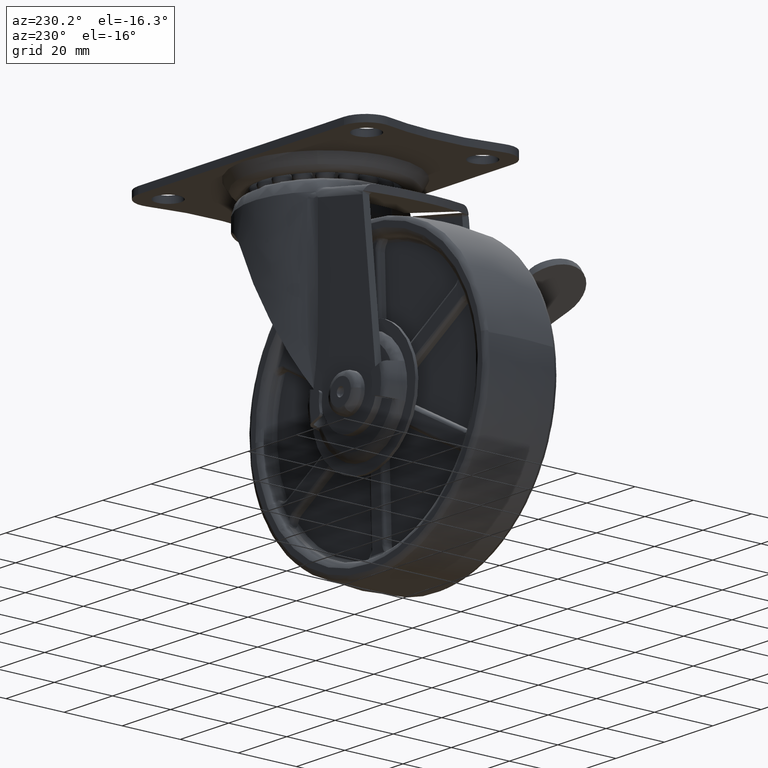
[diagram: clean part render]
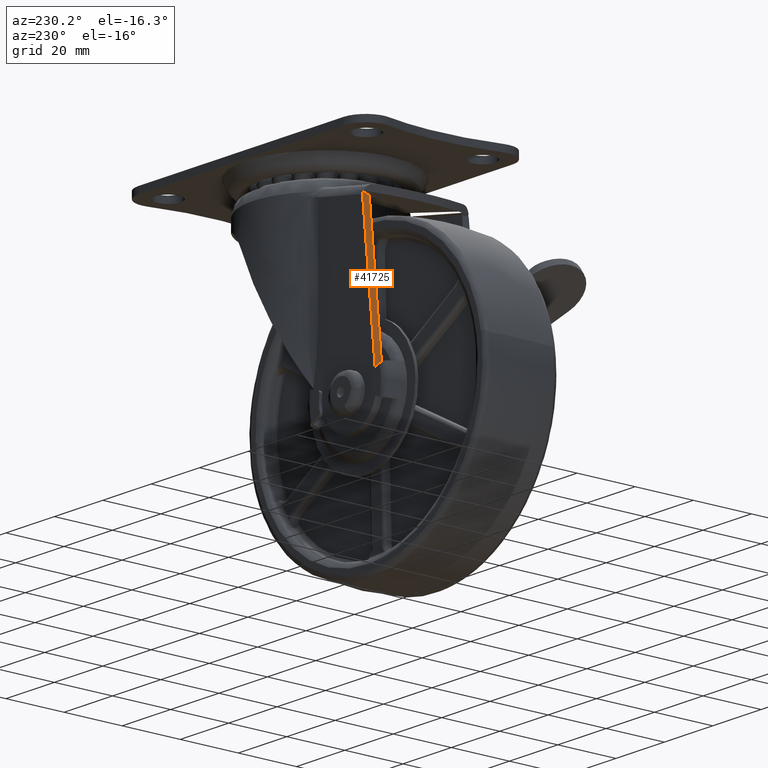
[diagram: same view with one face highlighted and labeled with its STEP entity id]
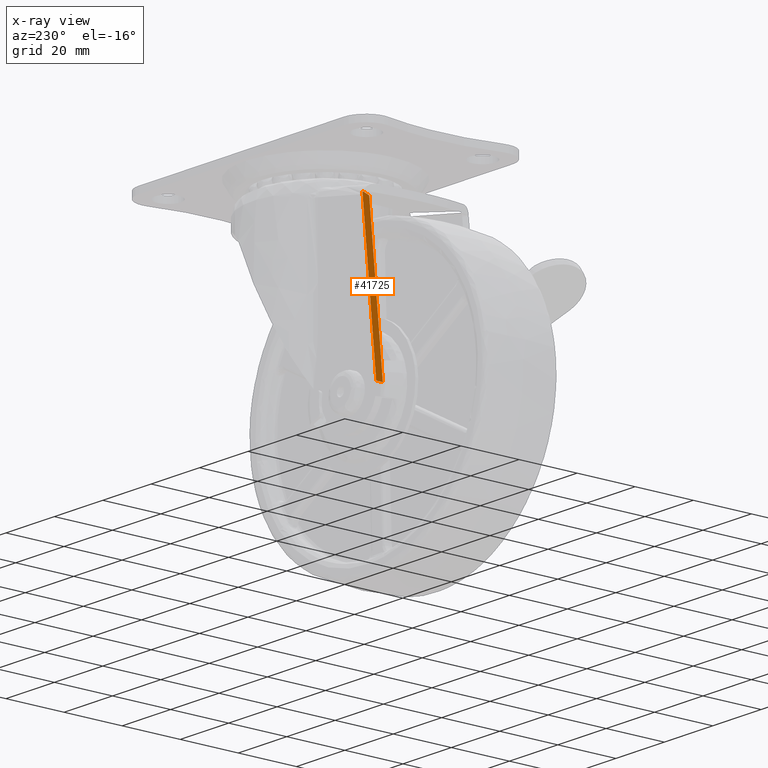
[diagram: x-ray of the same camera — body ghosted, the highlighted face saturated]
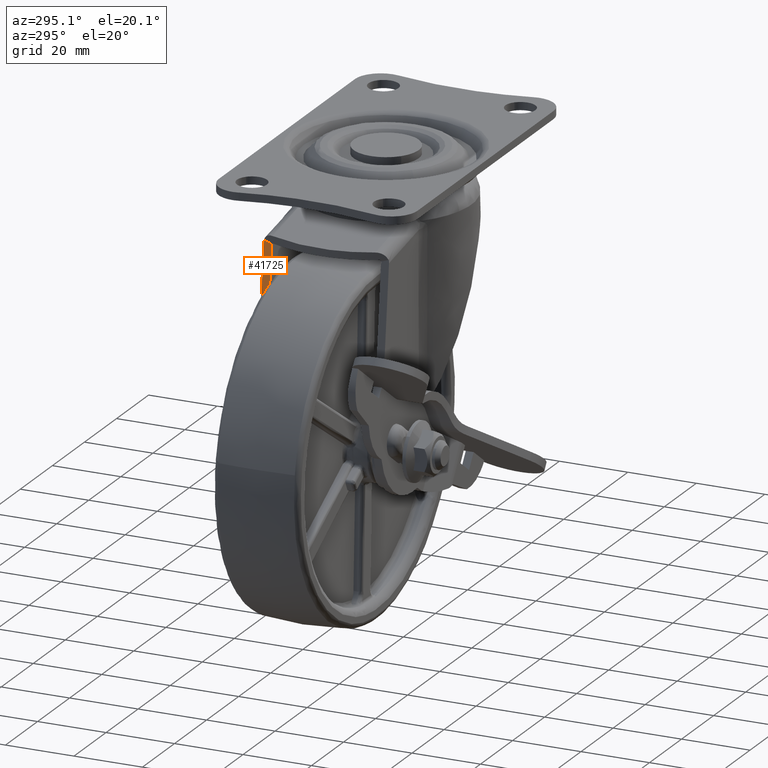
[diagram: same view with one face highlighted and labeled with its STEP entity id]
A machine part, auxiliary view. The second image highlights one B-rep face of the part: STEP entity #41725.
The next image is the same camera in x-ray: the body ghosted, the highlighted face saturated — about 0% of this face is hidden behind the body in this view.
A second angle (auxiliary view) of the same face is appended — the face is thin or edge-on in the first view.
In plain terms, the highlighted face is a freeform B-spline surface patch.
Its self-contained STEP definition (entity closure, byte-faithful):
#39468=CARTESIAN_POINT('',(-5.223535336880790,18.182616130073249,54.751618823891803));
#39469=VERTEX_POINT('',#39468);
#39480=CARTESIAN_POINT('',(-5.267100143460831,17.089585904325631,54.343105379554409));
#39481=VERTEX_POINT('',#39480);
#39482=CARTESIAN_POINT('',(-5.267100143460831,17.089585904325631,54.343105379554409));
#39483=CARTESIAN_POINT('',(-5.223535336880790,18.182616130073249,54.751618823891803));
#39484=QUASI_UNIFORM_CURVE('',1,(#39482,#39483),.UNSPECIFIED.,.F.,.U.);
#39485=EDGE_CURVE('',#39481,#39469,#39484,.T.);
#39487=CARTESIAN_POINT('',(-5.310664950040851,15.996555678578099,53.934591935217099));
#39488=VERTEX_POINT('',#39487);
#39489=CARTESIAN_POINT('',(-5.310664950040851,15.996555678578099,53.934591935217099));
#39490=CARTESIAN_POINT('',(-5.267100143460831,17.089585904325631,54.343105379554409));
#39491=QUASI_UNIFORM_CURVE('',1,(#39489,#39490),.UNSPECIFIED.,.F.,.U.);
#39492=EDGE_CURVE('',#39488,#39481,#39491,.T.);
#40776=CARTESIAN_POINT('',(-5.319803650310760,15.999990000000000,53.848897031070798));
#40777=VERTEX_POINT('',#40776);
#40790=CARTESIAN_POINT('',(-5.319803650310760,15.999990000000000,53.848897031070798));
#40791=CARTESIAN_POINT('',(-5.310664950040851,15.996555678578099,53.934591935217099));
#40792=QUASI_UNIFORM_CURVE('',1,(#40790,#40791),.UNSPECIFIED.,.F.,.U.);
#40793=EDGE_CURVE('',#40777,#39488,#40792,.T.);
#40891=CARTESIAN_POINT('',(-5.319803650310750,18.299990000000001,53.848897031070912));
#40892=VERTEX_POINT('',#40891);
#40898=CARTESIAN_POINT('',(-5.223535336880790,18.182616130073249,54.751618823891803));
#40899=CARTESIAN_POINT('',(-5.254912616556883,18.260532280401030,54.457389568658591));
#40900=CARTESIAN_POINT('',(-5.287357653259307,18.300054081114141,54.153147802529851));
#40901=CARTESIAN_POINT('',(-5.319803650310750,18.299990000000001,53.848897031070912));
#40902=B_SPLINE_CURVE_WITH_KNOTS('',3,(#40898,#40899,#40900,#40901),.UNSPECIFIED.,.F.,.U.,(4,4),(0.000000015355223,0.917966723361801),.UNSPECIFIED.);
#40903=EDGE_CURVE('',#39469,#40892,#40902,.T.);
#41167=CARTESIAN_POINT('',(-10.937980000000000,15.999990000000000,1.166451000000000));
#41168=VERTEX_POINT('',#41167);
#41169=CARTESIAN_POINT('',(-5.319803650310760,15.999990000000000,53.848897031070798));
#41170=CARTESIAN_POINT('',(-10.937980000000000,15.999990000000000,1.166451000000000));
#41171=QUASI_UNIFORM_CURVE('',1,(#41169,#41170),.UNSPECIFIED.,.F.,.U.);
#41172=EDGE_CURVE('',#40777,#41168,#41171,.T.);
#41364=CARTESIAN_POINT('',(-10.937980000000000,18.299990000000001,1.166451000000000));
#41365=VERTEX_POINT('',#41364);
#41387=CARTESIAN_POINT('',(-10.937980000000000,18.299990000000001,1.166451000000000));
#41388=CARTESIAN_POINT('',(-10.937980000000000,15.999990000000000,1.166451000000000));
#41389=QUASI_UNIFORM_CURVE('',1,(#41387,#41388),.UNSPECIFIED.,.F.,.U.);
#41390=EDGE_CURVE('',#41365,#41168,#41389,.T.);
#41637=CARTESIAN_POINT('',(-5.319803650310750,18.299990000000001,53.848897031070912));
#41638=CARTESIAN_POINT('',(-10.937980000000000,18.299990000000001,1.166451000000000));
#41639=QUASI_UNIFORM_CURVE('',1,(#41637,#41638),.UNSPECIFIED.,.F.,.U.);
#41640=EDGE_CURVE('',#40892,#41365,#41639,.T.);
#41711=CARTESIAN_POINT('',(-11.223416479430981,15.881498787555660,-1.510127837501091));
#41712=CARTESIAN_POINT('',(-4.938099112905293,15.881498787555660,57.428195265949213));
#41713=CARTESIAN_POINT('',(-11.223416479430981,18.415046273193209,-1.510127837501091));
#41714=CARTESIAN_POINT('',(-4.938099112905293,18.415046273193209,57.428195265949213));
#41715=B_SPLINE_SURFACE_WITH_KNOTS('',1,1,((#41711,#41713),(#41712,#41714)),.UNSPECIFIED.,.F.,.F.,.U.,(2,2),(2,2),(0.0,59.272515929768431),(0.0,2.533547485637550),.UNSPECIFIED.);
#41716=ORIENTED_EDGE('',*,*,#40793,.T.);
#41717=ORIENTED_EDGE('',*,*,#39492,.T.);
#41718=ORIENTED_EDGE('',*,*,#39485,.T.);
#41719=ORIENTED_EDGE('',*,*,#40903,.T.);
#41720=ORIENTED_EDGE('',*,*,#41640,.T.);
#41721=ORIENTED_EDGE('',*,*,#41390,.T.);
#41722=ORIENTED_EDGE('',*,*,#41172,.F.);
#41723=EDGE_LOOP('',(#41716,#41717,#41718,#41719,#41720,#41721,#41722));
#41724=FACE_OUTER_BOUND('',#41723,.T.);
#41725=ADVANCED_FACE('',(#41724),#41715,.T.);